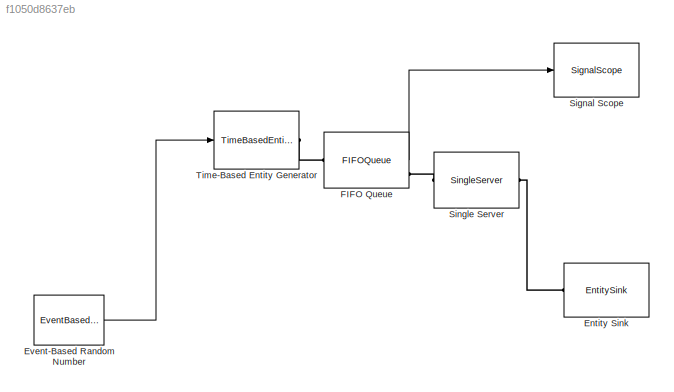
MODEL slx_f1050d8637eb
KIND model
BLOCK [EntitySink] Entity Sink
  OutputPortMap = o0
  Ports = [0, 1, 0, 0, 0, 1]
  StatNumberArrived = on
BLOCK [EventBasedRandomNumber] Event-Based Random Number
  Distribution = Gaussian (normal)
  OutputPortMap = o0
  Ports = [0, 1]
  meanNorm = 90
  stdNorm = 3
BLOCK [FIFOQueue] FIFO Queue
  Capacity = 250
  OutputPortMap = o1,o2
  Ports = [0, 2, 0, 0, 0, 1, 1]
  StatAverageWait = on
  StatNumberInBlock = on
BLOCK [SignalScope] Signal Scope
  CopyFcn = des.scope.CallbackSupport('seCopyFcn',gcbh)
  DeleteFcn = des.scope.CallbackSupport('seDeleteFcn',gcbh)
  InputPortMap = u0
  LoadFcn = des.scope.CallbackSupport('seLoadFcn',gcbh)
  NameChangeFcn = des.scope.CallbackSupport('seNameChangeFcn',gcbh)
  OpenFcn = des.scope.CallbackSupport('seOpenFcn',gcbh)
  Ports = [1]
  PreSaveFcn = des.scope.CallbackSupport('sePreSaveFcn',gcbh)
  StartFcn = des.scope.CallbackSupport('seStartFcn',gcbh)
  StopFcn = des.scope.CallbackSupport('seStopFcn',gcbh)
BLOCK [SingleServer] Single Server
  Ports = [0, 0, 0, 0, 0, 1, 1]
BLOCK [TimeBasedEntityGenerator] Time-Based Entity Generator
  Distribution = Exponential
  GenerateEntitiesUpon = Intergeneration time from port t
  InputPortMap = u0
  Ports = [1, 0, 0, 0, 0, 0, 1]
  PriorityEntityGeneration = 9
LINE Event-Based Random Number:1 -> Time-Based Entity Generator:1
LINE FIFO Queue:2 -> Signal Scope:1
PLINE Entity Sink:LConn1 -- Single Server:RConn1
PLINE FIFO Queue:LConn1 -- Time-Based Entity Generator:RConn1
PLINE FIFO Queue:RConn1 -- Single Server:LConn1
